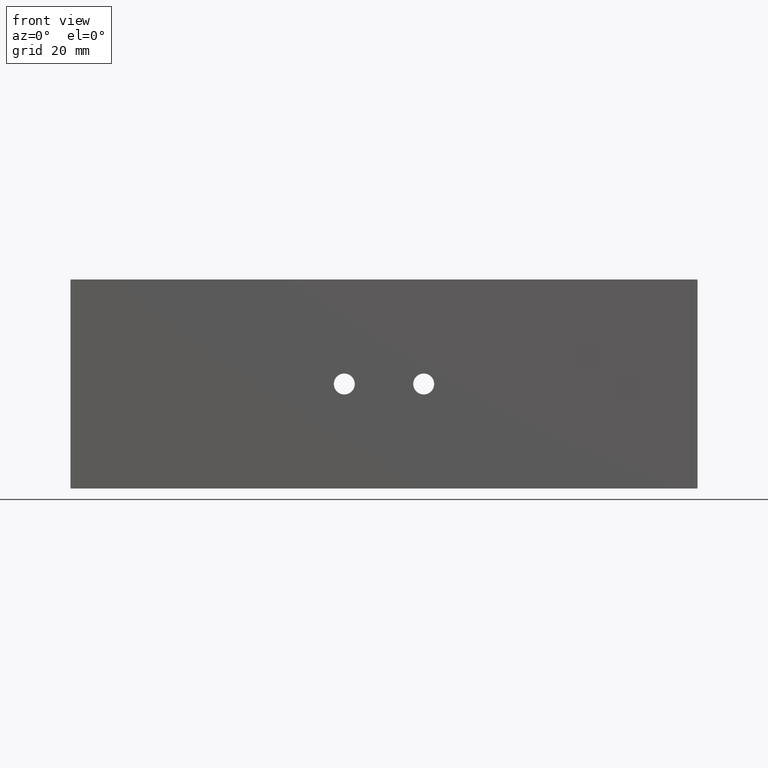
[diagram: clean part render]
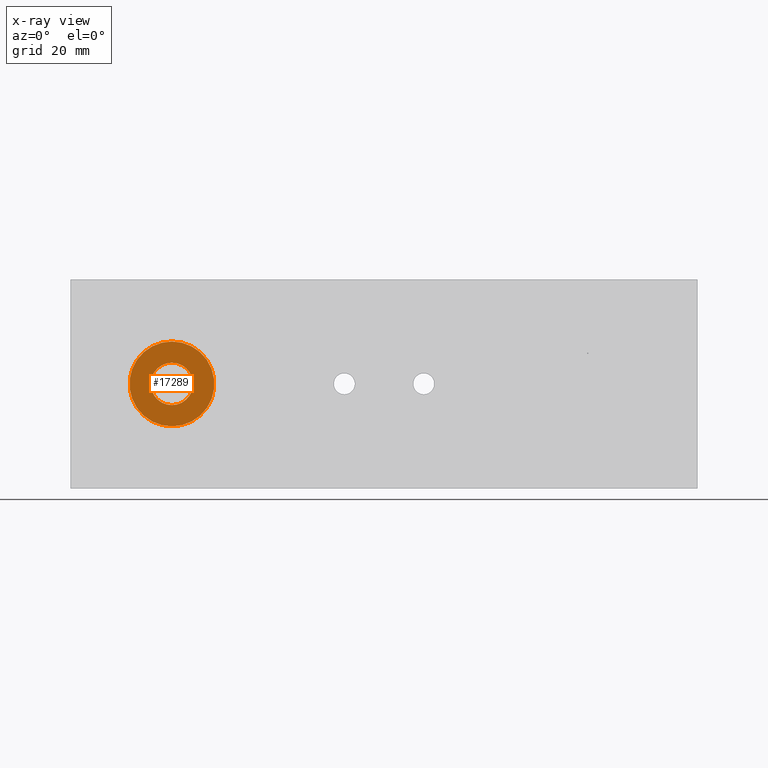
[diagram: x-ray — body ghosted, one internal face saturated and labeled with its STEP entity id]
A machine part, front view, then the same camera in x-ray: the body is ghosted and one INTERNAL B-rep face — a face not visible from any outside direction — is saturated and labeled: STEP entity #17289.
In plain terms, the highlighted planar face has unit normal (0, 1, 0).
Its self-contained STEP definition (entity closure, byte-faithful):
#10762 = EDGE_LOOP ( 'NONE', ( #24462, #22572 ) ) ;
#10772 = EDGE_LOOP ( 'NONE', ( #24489, #23346 ) ) ;
#14604 = AXIS2_PLACEMENT_3D ( 'NONE', #15718, #15719, #15720 ) ;
#14605 = AXIS2_PLACEMENT_3D ( 'NONE', #15792, #15793, #15794 ) ;
#14606 = AXIS2_PLACEMENT_3D ( 'NONE', #17134, #17136, #17138 ) ;
#14633 = AXIS2_PLACEMENT_3D ( 'NONE', #19256, #19257, #19258 ) ;
#15039 = CIRCLE ( 'NONE', #14604, 0.2029999999999999900 ) ;
#15044 = CIRCLE ( 'NONE', #14605, 0.4059999999999999700 ) ;
#15073 = CIRCLE ( 'NONE', #14606, 0.2029999999999999900 ) ;
#15319 = CIRCLE ( 'NONE', #14633, 0.4059999999999999700 ) ;
#15718 = CARTESIAN_POINT ( 'NONE',  ( -2.029999999999999400, 0.4399999999999996700, 2.150488012043719000E-016 ) ) ;
#15719 = DIRECTION ( 'NONE',  ( 0.0000000000000000000, 1.000000000000000000, 0.0000000000000000000 ) ) ;
#15720 = DIRECTION ( 'NONE',  ( 0.0000000000000000000, 0.0000000000000000000, 1.000000000000000000 ) ) ;
#15792 = CARTESIAN_POINT ( 'NONE',  ( -2.029999999999999400, 0.4399999999999996700, 2.150488012043719000E-016 ) ) ;
#15793 = DIRECTION ( 'NONE',  ( 0.0000000000000000000, 1.000000000000000000, 0.0000000000000000000 ) ) ;
#15794 = DIRECTION ( 'NONE',  ( 0.0000000000000000000, 0.0000000000000000000, 1.000000000000000000 ) ) ;
#17134 = CARTESIAN_POINT ( 'NONE',  ( -2.029999999999999400, 0.4399999999999996700, 2.150488012043719000E-016 ) ) ;
#17136 = DIRECTION ( 'NONE',  ( 0.0000000000000000000, 1.000000000000000000, 0.0000000000000000000 ) ) ;
#17138 = DIRECTION ( 'NONE',  ( 0.0000000000000000000, 0.0000000000000000000, 1.000000000000000000 ) ) ;
#17289 = ADVANCED_FACE ( 'NONE', ( #27473, #27477 ), #31690, .F. ) ;
#19256 = CARTESIAN_POINT ( 'NONE',  ( -2.029999999999999400, 0.4399999999999996700, 2.150488012043719000E-016 ) ) ;
#19257 = DIRECTION ( 'NONE',  ( 0.0000000000000000000, 1.000000000000000000, 0.0000000000000000000 ) ) ;
#19258 = DIRECTION ( 'NONE',  ( 0.0000000000000000000, 0.0000000000000000000, 1.000000000000000000 ) ) ;
#22572 = ORIENTED_EDGE ( 'NONE', *, *, #26657, .T. ) ;
#23346 = ORIENTED_EDGE ( 'NONE', *, *, #26620, .F. ) ;
#24462 = ORIENTED_EDGE ( 'NONE', *, *, #26609, .T. ) ;
#24489 = ORIENTED_EDGE ( 'NONE', *, *, #32094, .F. ) ;
#25143 = VERTEX_POINT ( 'NONE', #45862 ) ;
#25149 = VERTEX_POINT ( 'NONE', #45868 ) ;
#25199 = VERTEX_POINT ( 'NONE', #45918 ) ;
#25216 = VERTEX_POINT ( 'NONE', #45935 ) ;
#26609 = EDGE_CURVE ( 'NONE', #25199, #25216, #15039, .T. ) ;
#26620 = EDGE_CURVE ( 'NONE', #25143, #25149, #15044, .T. ) ;
#26657 = EDGE_CURVE ( 'NONE', #25216, #25199, #15073, .T. ) ;
#27473 = FACE_OUTER_BOUND ( 'NONE', #10772, .T. ) ;
#27477 = FACE_BOUND ( 'NONE', #10762, .T. ) ;
#28777 = AXIS2_PLACEMENT_3D ( 'NONE', #31698, #31699, #31700 ) ;
#31690 = PLANE ( 'NONE',  #28777 ) ;
#31698 = CARTESIAN_POINT ( 'NONE',  ( -2.029999999999999400, 0.4399999999999996700, 2.150488012043719000E-016 ) ) ;
#31699 = DIRECTION ( 'NONE',  ( 0.0000000000000000000, 1.000000000000000000, 0.0000000000000000000 ) ) ;
#31700 = DIRECTION ( 'NONE',  ( 0.0000000000000000000, -0.0000000000000000000, 1.000000000000000000 ) ) ;
#32094 = EDGE_CURVE ( 'NONE', #25149, #25143, #15319, .T. ) ;
#45862 = CARTESIAN_POINT ( 'NONE',  ( -2.029999999999999400, 0.4399999999999996700, 0.4060000000000001900 ) ) ;
#45868 = CARTESIAN_POINT ( 'NONE',  ( -2.029999999999999400, 0.4399999999999996700, -0.4059999999999998100 ) ) ;
#45918 = CARTESIAN_POINT ( 'NONE',  ( -2.029999999999999400, 0.4399999999999996700, -0.2029999999999997900 ) ) ;
#45935 = CARTESIAN_POINT ( 'NONE',  ( -2.029999999999999400, 0.4399999999999996700, 0.2030000000000002100 ) ) ;